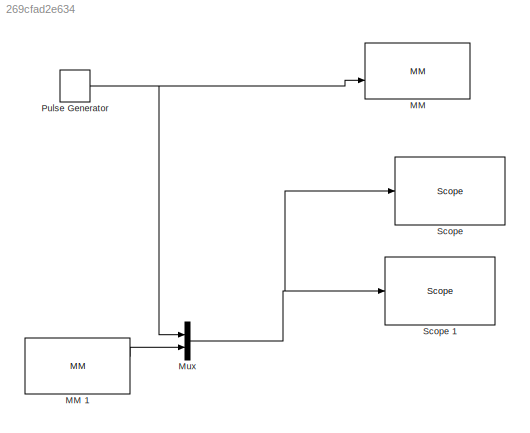
MODEL slx_269cfad2e634
KIND model
BLOCK [Reference] MM   REF=xpcdiamondlib/D//A/MM 
  Ports = [2]
  SourceBlock = xpcdiamondlib/D//A/MM
  SourceType = dadiamondmm
  base = 0x300
  channel = [1,2]
  initValue = [0]
  range = [5]
  reset = [1]
  sampleTime = 0.1
BLOCK [Reference] MM 1  REF=xpcdiamondlib/A//D/MM 
  Ports = [0, 2]
  SourceBlock = xpcdiamondlib/A//D/MM
  SourceType = addiamondmm
  base = 0x300
  coupling = 16 single-ended channels
  numChans = 2
  range = -5V to 5V
  sampleTime = 0.1
  showStatus = off
BLOCK [Mux] Mux
  DisplayOption = bar
  Inputs = 2
  Ports = [2, 1]
BLOCK [DiscretePulseGenerator] Pulse Generator
  Period = 20
  Ports = [0, 1]
  PulseWidth = 10
  SampleTime = 0.1
BLOCK [Reference] Scope   REF=slrtlib/Displays and
Logging/Scope 
  Ports = [1]
  SourceBlock = slrtlib/Displays and\nLogging/Scope
  SourceType = xpcscopeblock
  autorestart = off
  autostart = on
  dynamicfilemode = off
  filename = data.dat
  formatstr = '%15.6f'
  grid = on
  interleave = 1
  maxwritefilesize = 512*1024^2
  mode = Lazy
  noprepostsamples = 0
  nosamples = 250
  scopeno = 1
  scopetype = Target
  triggerlevel = 0.0
  triggermode = FreeRun
  triggersample = 0
  triggerscope = 1
  triggersignal = 1
  triggerslope = Either
  trigsignalfromport = off
  viewmode = Graphical sliding
  writesize = 512
  ylimits = [0,0]
BLOCK [Reference] Scope 1  REF=slrtlib/Displays and
Logging/Scope 
  Ports = [1]
  SourceBlock = slrtlib/Displays and\nLogging/Scope
  SourceType = xpcscopeblock
  autorestart = off
  autostart = on
  dynamicfilemode = off
  filename = data.dat
  formatstr = '%15.6f'
  grid = on
  interleave = 1
  maxwritefilesize = 512*1024^2
  mode = Lazy
  noprepostsamples = 0
  nosamples = 250
  scopeno = 2
  scopetype = Target
  triggerlevel = 0.0
  triggermode = FreeRun
  triggersample = 0
  triggerscope = 1
  triggersignal = 1
  triggerslope = Either
  trigsignalfromport = off
  viewmode = Numerical
  writesize = 512
  ylimits = [0,0]
LINE MM 1:1 -> Mux:2
NET Mux:1 -> Scope 1:1, Scope :1
NET Pulse Generator:1 -> MM :2, Mux:1
note: NET lines group one-source signal fan-out (src -> all destinations, sorted); 1:1 wires keep LINE
